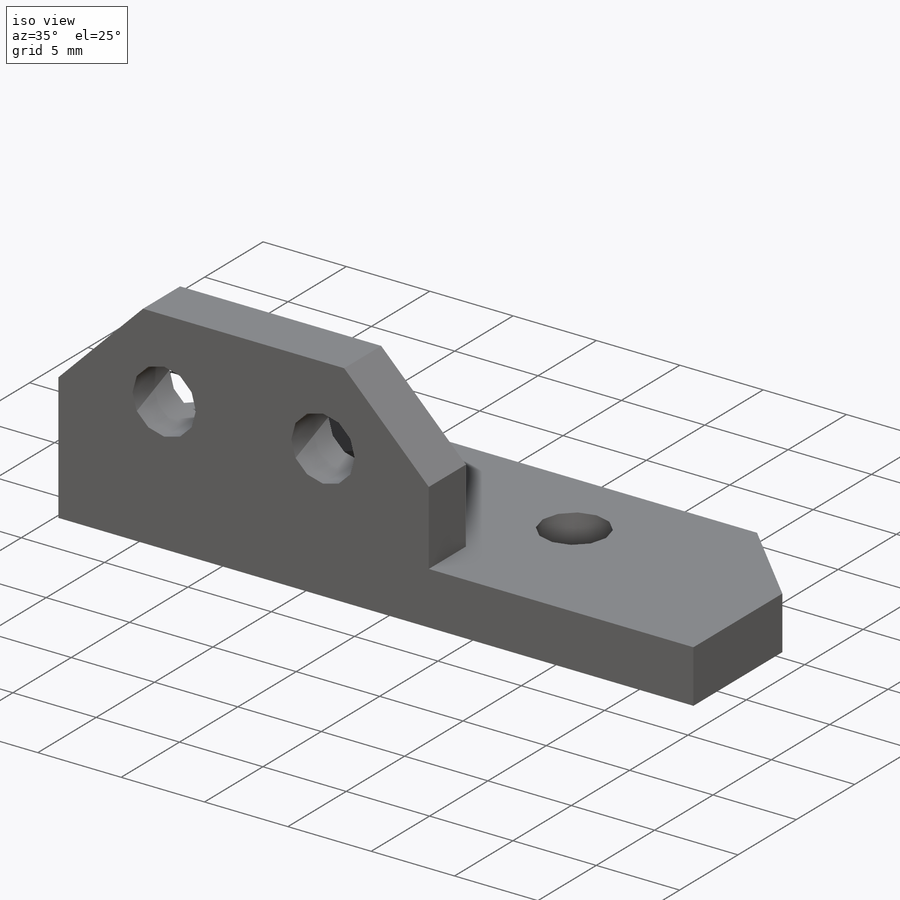
[diagram: iso view]
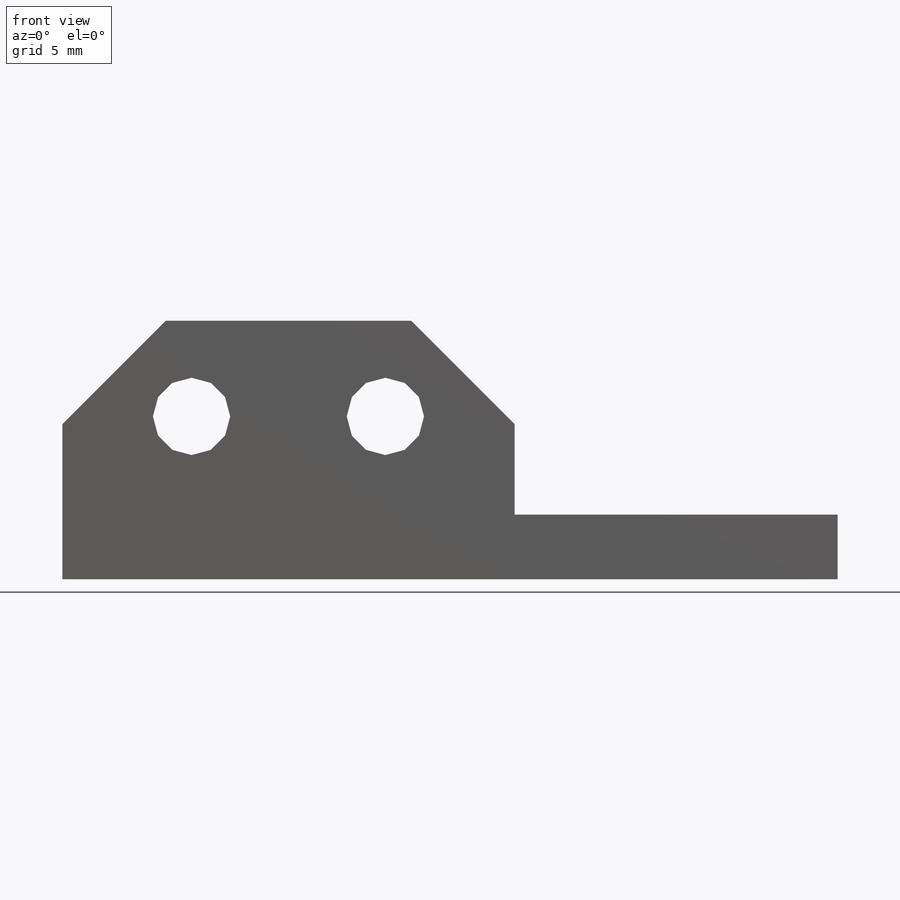
[diagram: front view]
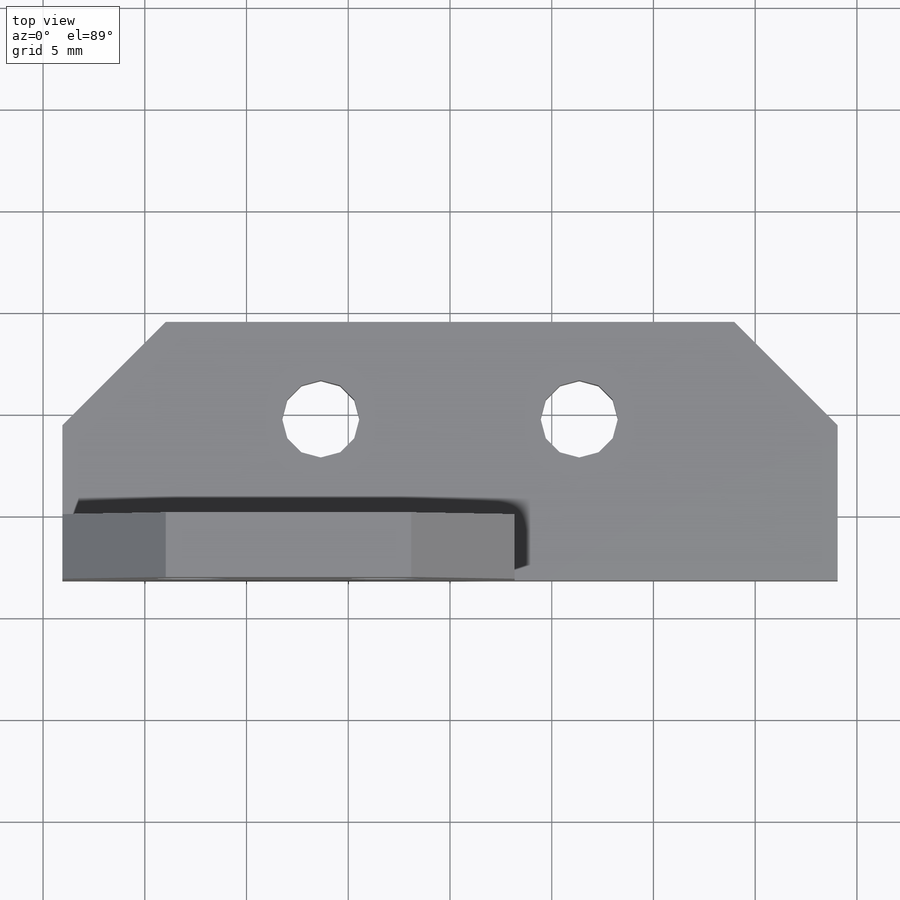
[diagram: top view]
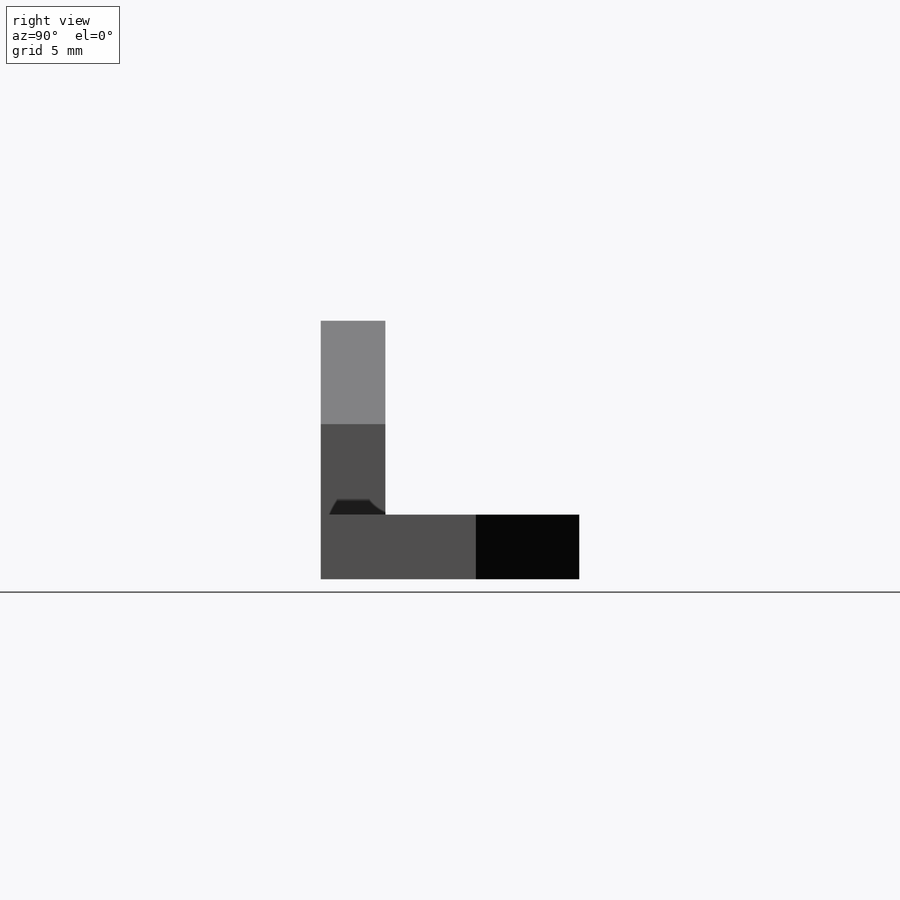
[diagram: right view]
SOLIDWORKS PART (.sldprt)
format: sldprt  version: not decoded by parser v0  size: 304,128 bytes
history: native  units: mm
features: sketch x4, material x1, extrude x1, hole x1, cut_extrude x1, chamfer x1 (+11 scaffold rows collapsed)
feature tree (20):
  scaffold x11  (default folders/planes/origin — collapsed)
  material  "1060 Alloy"
  sketch  "Sketch1"  dims[D1=12.7mm D2=12.7mm D3=9.525mm D4=9.8425mm D5=3.175mm D6=2.8575mm]
  extrude  "Extrude1"  Depth=19.05mm
  hole  "#6 Clearance Hole1"  Diameter=3.7973mm Depth=6.35mm
  sketch  "3DSketch1"  dims[c1.D1=12.7mm c1.D2=~8.526054mm c1.D3=9.525mm c2.D2=4.7625mm c2.D3=12.7mm c2.D4=6.35mm c2.D5=~13.96761mm c2.D8=6.35mm c2.D6=~5.171837mm c3.D5=4.7625mm c3.D7=~12.709762mm c4.D5=12.7mm c5.D5=4.699mm c5.D6=9.525mm]
  sketch  "Sketch2"  dims[hole-wizard template sketch: 50 standard entries collapsed; hole parameters above]
  sketch  "Sketch3"  dims[D1=15.875mm]
  cut_extrude  "Cut-Extrude1"  [1 undecoded]
  chamfer  "Chamfer1"  Distance=5.08mm Angle=45deg
decode coverage: 7 of 8 modeling features carry decoded parameters
note: ~ marks probable driven/reference dimensions
note: 1 parameter value undecoded
note: suppression state not decoded; provenance and decode notes live in map.json
